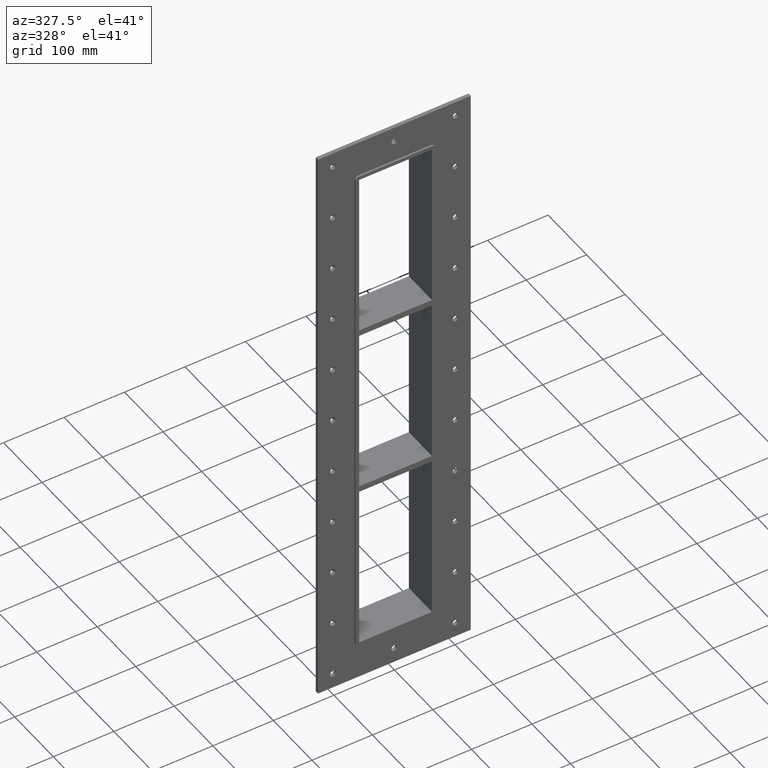
[diagram: clean part render]
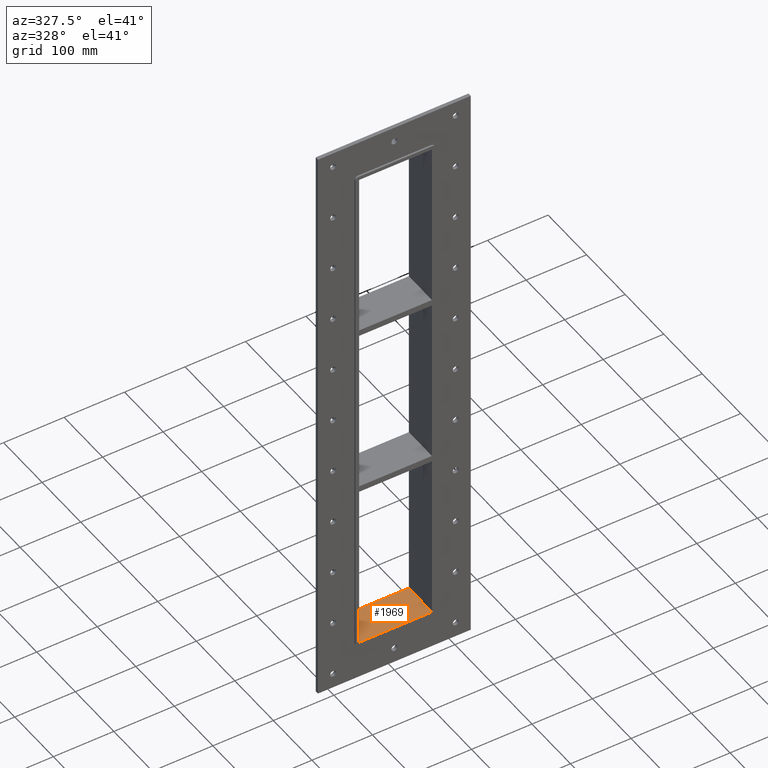
[diagram: same view with one face highlighted and labeled with its STEP entity id]
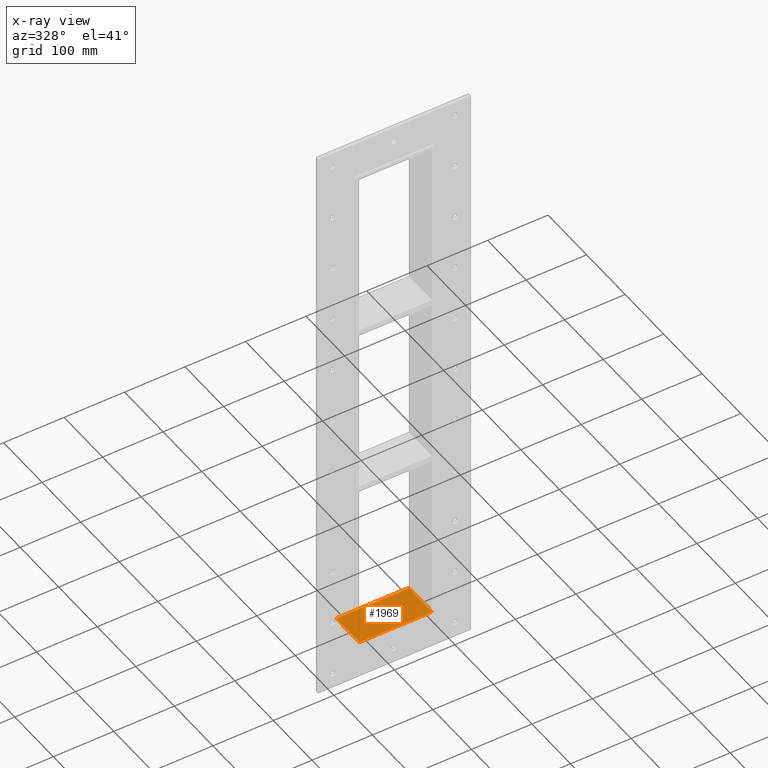
[diagram: x-ray of the same camera — body ghosted, the highlighted face saturated]
A machine part, auxiliary view. The second image highlights one B-rep face of the part: STEP entity #1969.
The next image is the same camera in x-ray: the body ghosted, the highlighted face saturated — about 0% of this face is hidden behind the body in this view.
In plain terms, the highlighted planar face has unit normal (0, 0, -1).
Its self-contained STEP definition (entity closure, byte-faithful):
#1012=CARTESIAN_POINT('',(60.250000000000014,57.0,-427.00000000000011));
#1013=VERTEX_POINT('',#1012);
#1020=CARTESIAN_POINT('',(60.250000000000014,-3.0,-427.00000000000011));
#1021=VERTEX_POINT('',#1020);
#1022=CARTESIAN_POINT('',(60.250000000000014,56.999999999999993,-427.00000000000011));
#1023=DIRECTION('',(0.0,-1.0,0.0));
#1024=VECTOR('',#1023,59.999999999999993);
#1025=LINE('',#1022,#1024);
#1026=EDGE_CURVE('',#1013,#1021,#1025,.T.);
#1475=CARTESIAN_POINT('',(-60.249999999999993,-3.0,-427.00000000000011));
#1476=VERTEX_POINT('',#1475);
#1483=CARTESIAN_POINT('',(-60.249999999999993,57.0,-427.00000000000011));
#1484=VERTEX_POINT('',#1483);
#1485=CARTESIAN_POINT('',(-60.25,-3.0,-427.00000000000011));
#1486=DIRECTION('',(0.0,1.0,0.0));
#1487=VECTOR('',#1486,60.0);
#1488=LINE('',#1485,#1487);
#1489=EDGE_CURVE('',#1476,#1484,#1488,.T.);
#1835=CARTESIAN_POINT('',(60.250000000000014,-3.0,-427.00000000000011));
#1836=DIRECTION('',(-1.0,0.0,0.0));
#1837=VECTOR('',#1836,120.5);
#1838=LINE('',#1835,#1837);
#1839=EDGE_CURVE('',#1021,#1476,#1838,.T.);
#1953=CARTESIAN_POINT('',(60.250000000000014,0.0,-427.00000000000011));
#1954=DIRECTION('',(0.0,0.0,-1.0));
#1955=DIRECTION('',(-1.0,0.0,0.0));
#1956=AXIS2_PLACEMENT_3D('',#1953,#1954,#1955);
#1957=PLANE('',#1956);
#1958=ORIENTED_EDGE('',*,*,#1489,.F.);
#1959=ORIENTED_EDGE('',*,*,#1839,.F.);
#1960=ORIENTED_EDGE('',*,*,#1026,.F.);
#1961=CARTESIAN_POINT('',(-60.249999999999993,57.0,-427.00000000000011));
#1962=DIRECTION('',(1.0,0.0,0.0));
#1963=VECTOR('',#1962,120.5);
#1964=LINE('',#1961,#1963);
#1965=EDGE_CURVE('',#1484,#1013,#1964,.T.);
#1966=ORIENTED_EDGE('',*,*,#1965,.F.);
#1967=EDGE_LOOP('',(#1958,#1959,#1960,#1966));
#1968=FACE_OUTER_BOUND('',#1967,.T.);
#1969=ADVANCED_FACE('',(#1968),#1957,.F.);